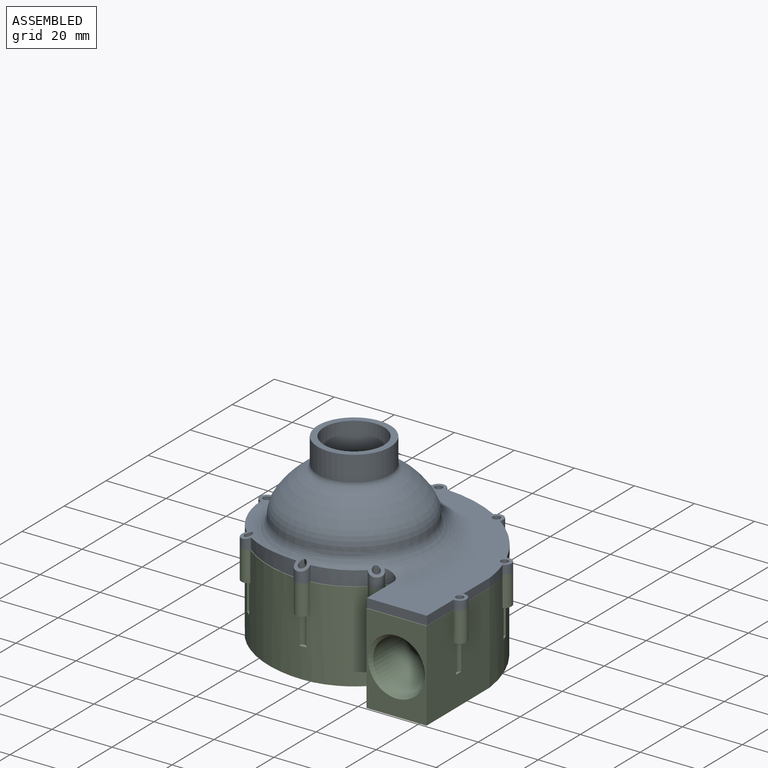
[diagram: assembled view]
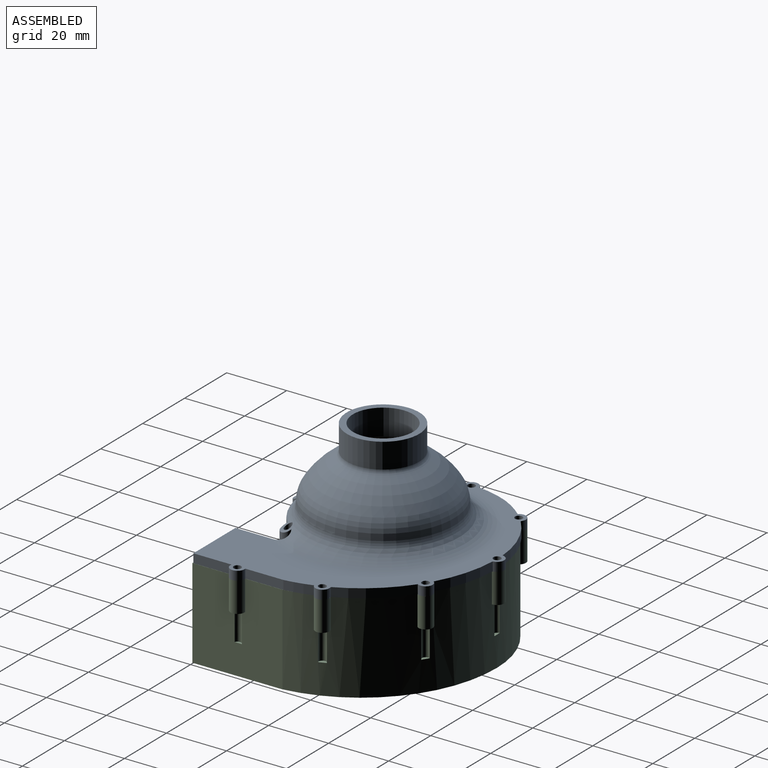
[diagram: assembled view, second angle]
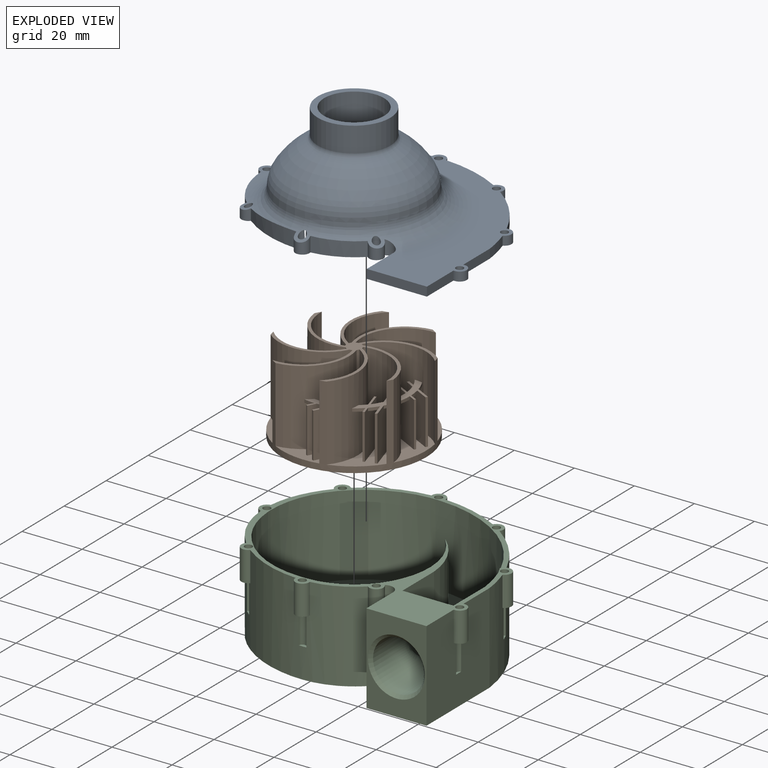
[diagram: exploded view]
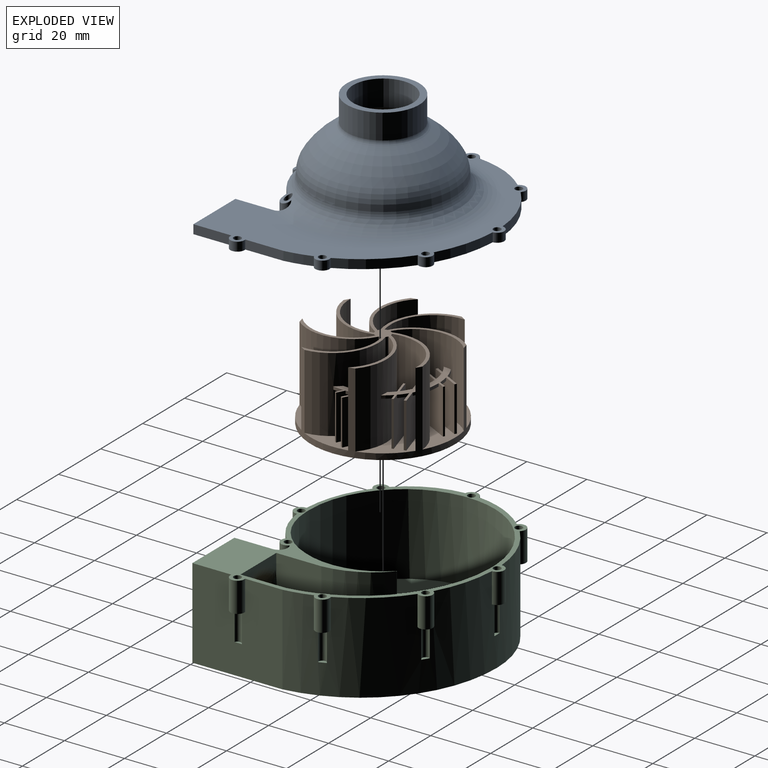
[diagram: exploded view, second angle]
ASSEMBLY  parts=3 mates=2
PART A: 57 faces, bbox 91.2x84.9x33 mm
  f0: cylinder r=35.31mm len=7.96mm, axis (0,0,-1), area 28.7mm2, adj f2,f8,f24,f55
  f1: cylinder r=37mm len=3.39mm, axis (0,0,-1), area 10.4mm2, adj f3,f10,f24,f52
  f2: plane 84.43x72.1mm, normal (0,0,1), area 1372.6mm2, adj f0,f3,f4,f5,f6,f7,f8,f9
  f3: torus R=32.11mm, axis (0,0,1), area 955.5mm2, adj f1,f2,f4,f10,f11,f12,f13,f14
  f4: torus R=32.11mm, axis (0,0,1), area 0.1mm2, adj f2,f3,f15
  f5: cylinder r=45.31mm len=19.86mm, axis (0,0,-1), area 62.6mm2, adj f2,f6,f23,f24
  f6: cylinder r=2.34mm len=4.68mm, axis (0,0,-1), area 21mm2, adj f2,f5,f7,f24
  f7: cylinder r=35.31mm len=20.98mm, axis (0,0,-1), area 69.3mm2, adj f2,f6,f8,f24
  f8: cylinder r=2.34mm len=3.92mm, axis (0,0,-1), area 21.4mm2, adj f0,f2,f7,f24
  f9: cylinder r=2.34mm len=4.35mm, axis (0,0,-1), area 16.8mm2, adj f2,f24,f53,f56
  f10: cylinder r=2.34mm len=4.2mm, axis (0,0,-1), area 27.3mm2, adj f1,f3,f11,f24
  f11: cylinder r=37mm len=20.39mm, axis (0,0,-1), area 97.6mm2, adj f3,f10,f12,f24
  f12: cylinder r=2.34mm len=5.1mm, axis (0,0,-1), area 41.9mm2, adj f3,f11,f13,f24
  f13: cylinder r=25mm len=14.5mm, axis (0,0,-1), area 79.3mm2, adj f3,f12,f14,f24
  f14: cylinder r=2.34mm len=4.8mm, axis (0,0,-1), area 38.4mm2, adj f3,f13,f24,f34
  f15: plane 12.85x3.01mm, normal (-1,0,0), area 38.5mm2, adj f2,f4,f16,f24,f34
  f16: plane 20x3mm, normal (0,-1,0), area 60mm2, adj f2,f15,f17,f24
  f17: plane 12.69x3mm, normal (1,0,0), area 38.1mm2, adj f2,f16,f18,f24
  f18: cylinder r=2.34mm len=4.69mm, axis (0,0,-1), area 24.8mm2, adj f2,f17,f19,f24
  f19: plane 12.7x3mm, normal (1,0,0), area 38.1mm2, adj f2,f18,f20,f24
  f20: cylinder r=45.31mm len=8.83mm, axis (0,0,-1), area 27.2mm2, adj f2,f19,f21,f24
  f21: cylinder r=2.34mm len=4.52mm, axis (0,0,-1), area 21.8mm2, adj f2,f20,f22,f24
  f22: cylinder r=45.31mm len=18.43mm, axis (0,0,-1), area 72.4mm2, adj f2,f21,f23,f24
  f23: cylinder r=2.34mm len=4.28mm, axis (0,0,-1), area 21.6mm2, adj f2,f5,f22,f24
  f24: plane 84.43x72.1mm, normal (0,0,-1), area 2326.2mm2, adj f0,f1,f5,f6,f7,f8,f9,f10
  f25: cylinder r=1.25mm len=5.48mm, axis (0,0,1), area 38.5mm2, adj f3,f24,f48
  f26: cylinder r=1.25mm len=5.8mm, axis (0,0,1), area 38mm2, adj f3,f24,f39,f51
  f27: cylinder r=1.25mm len=3.95mm, axis (0,0,1), area 28.3mm2, adj f3,f24
  f28: cylinder r=1.25mm len=3mm, axis (0,0,1), area 23.6mm2, adj f2,f24
  f29: cylinder r=1.25mm len=3mm, axis (0,0,1), area 23.6mm2, adj f2,f24
  f30: cylinder r=1.25mm len=3mm, axis (0,0,1), area 23.6mm2, adj f2,f24
  f31: cylinder r=1.25mm len=3mm, axis (0,0,1), area 23.6mm2, adj f2,f24
  f32: cylinder r=1.25mm len=3mm, axis (0,0,1), area 23.6mm2, adj f2,f24
  f33: cylinder r=1.25mm len=3mm, axis (0,0,1), area 23.6mm2, adj f2,f24
  f34: cylinder r=3mm len=4.85mm, axis (0,0,1), area 26.1mm2, adj f3,f14,f15,f24
  f35: cylinder r=25mm len=50mm, axis (0,0,1), area 450.7mm2, adj f24,f38
  f36: cylinder r=21.75mm len=43.5mm, axis (0,0,-1), area 865.3mm2, adj f37,f40
  f37: torus R=6.5mm, axis (0,0,-1), area 398.5mm2, adj f36,f38
  f38: cone r=20.22mm half-angle=89.2deg, axis (0,0,-1), area 678.8mm2, adj f35,f37
  f39: cone r=23.81mm half-angle=16.7deg, axis (0,0,-1), area 0mm2, adj f26
  f40: torus R=0.55mm, axis (0,0,-1), area 1598.6mm2, adj f36,f41
  f41: torus R=13.04mm, axis (0,0,-1), area 169mm2, adj f40,f42
  f42: cylinder r=10mm len=20mm, axis (0,0,-1), area 543mm2, adj f41,f43
  f43: plane 24.18x24.18mm, normal (0,0,1), area 145.1mm2, adj f42,f44
  f44: cylinder r=12.09mm len=24.18mm, axis (0,0,-1), area 637.6mm2, adj f43,f45
  f45: torus R=13.98mm, axis (0,0,-1), area 134mm2, adj f44,f46
  f46: revolved ~44.28x44.28mm, area 1410.8mm2, adj f45,f47
  f47: torus R=13.81mm, axis (0,0,1), area 856mm2, adj f46,f48,f49,f50,f51
  f48: bspline ~3.9x2.52mm, area 4.7mm2, adj f25,f47,f49,f50
  f49: torus R=28.81mm, axis (0,0,-1), area 76.3mm2, adj f3,f47,f48,f51
  f50: torus R=28.81mm, axis (0,0,-1), area 563.4mm2, adj f3,f47,f48,f51
  f51: bspline ~3.88x2.07mm, area 6.4mm2, adj f26,f47,f49,f50
  f52: cylinder r=29.08mm len=12.09mm, axis (0,0,-1), area 41.6mm2, adj f1,f2,f3,f24,f54
  f53: cylinder r=1.77mm len=3mm, axis (0,0,-1), area 2.1mm2, adj f2,f9,f24,f54
  f54: cylinder r=32.39mm len=4.77mm, axis (0,0,-1), area 14.5mm2, adj f2,f24,f52,f53
  f55: cylinder r=36.16mm len=10.54mm, axis (0,0,-1), area 32.8mm2, adj f0,f2,f24,f56
  f56: cylinder r=2.09mm len=3mm, axis (0,0,-1), area 1.2mm2, adj f2,f9,f24,f55
PART B: 189 faces, bbox 48x48x27 mm
  f0: cylinder r=14.13mm len=25mm, axis (0,0,-1), area 661mm2, adj f51,f57,f66,f67,f97,f145,f146,f147
  f1: cylinder r=15.34mm len=25mm, axis (0,0,-1), area 672.7mm2, adj f50,f63,f66,f67,f102,f139,f140,f141
  f2: cylinder r=14.13mm len=25mm, axis (0,0,-1), area 661mm2, adj f50,f63,f66,f68,f102,f136,f137,f138
  f3: cylinder r=15.34mm len=25mm, axis (0,0,-1), area 672.7mm2, adj f49,f62,f66,f68,f107,f130,f131,f132
  f4: cylinder r=14.13mm len=25mm, axis (0,0,-1), area 661mm2, adj f49,f62,f66,f69,f107,f127,f128,f129
  f5: cylinder r=15.34mm len=25mm, axis (0,0,-1), area 672.7mm2, adj f48,f61,f66,f69,f112,f121,f122,f123
  f6: cylinder r=14.13mm len=25mm, axis (0,0,-1), area 661mm2, adj f48,f61,f66,f70,f112,f118,f119,f120
  f7: cylinder r=15.34mm len=25mm, axis (0,0,-1), area 672.7mm2, adj f55,f60,f66,f70,f77,f184,f185,f186
  f8: cylinder r=14.13mm len=25mm, axis (0,0,-1), area 661mm2, adj f55,f60,f66,f71,f77,f181,f182,f183
  f9: cylinder r=15.34mm len=25mm, axis (0,0,-1), area 672.7mm2, adj f54,f59,f66,f71,f82,f175,f176,f177
  f10: cylinder r=14.13mm len=25mm, axis (0,0,-1), area 661mm2, adj f54,f59,f66,f72,f82,f172,f173,f174
  f11: cylinder r=15.34mm len=25mm, axis (0,0,-1), area 672.7mm2, adj f53,f58,f66,f72,f87,f166,f167,f168
  f12: cylinder r=14.13mm len=25mm, axis (0,0,-1), area 661mm2, adj f53,f58,f66,f73,f87,f163,f164,f165
  f13: cylinder r=15.34mm len=25mm, axis (0,0,-1), area 672.7mm2, adj f52,f56,f66,f73,f92,f157,f158,f159
  f14: cylinder r=14.13mm len=25mm, axis (0,0,-1), area 661mm2, adj f52,f56,f66,f74,f92,f154,f155,f156
  f15: cylinder r=15.34mm len=25mm, axis (0,0,-1), area 672.7mm2, adj f51,f57,f66,f74,f97,f148,f149,f150
  f16: plane 15x9.97mm, normal (-0.3,0.96,0), area 154.1mm2, adj f55,f75,f76,f77,f184,f185,f186
  f17: plane 15x9.99mm, normal (0.3,-0.96,0), area 154.4mm2, adj f55,f75,f76,f77,f178,f179,f180
  f18: plane 15x10.76mm, normal (0.3,-0.96,0), area 165.8mm2, adj f55,f77,f78,f79,f181,f182,f183
  f19: plane 15x10.76mm, normal (-0.3,0.96,0), area 166mm2, adj f55,f77,f78,f79,f178,f179,f180
  f20: plane 15x9.23mm, normal (-0.88,0.47,0), area 154.1mm2, adj f54,f80,f81,f82,f175,f176,f177
  f21: plane 15x9.25mm, normal (0.88,-0.47,0), area 154.4mm2, adj f54,f80,f81,f82,f169,f170,f171
  f22: plane 15x9.96mm, normal (0.88,-0.47,0), area 165.8mm2, adj f54,f82,f83,f84,f172,f173,f174
  f23: plane 15x9.96mm, normal (-0.88,0.47,0), area 166mm2, adj f54,f82,f83,f84,f169,f170,f171
  f24: plane 15x9.97mm, normal (-0.96,-0.3,0), area 154.1mm2, adj f53,f85,f86,f87,f166,f167,f168
  f25: plane 15x9.99mm, normal (0.96,0.3,0), area 154.4mm2, adj f53,f85,f86,f87,f160,f161,f162
  f26: plane 15x10.76mm, normal (0.96,0.3,0), area 165.8mm2, adj f53,f87,f88,f89,f163,f164,f165
  f27: plane 15x10.76mm, normal (-0.96,-0.3,0), area 166mm2, adj f53,f87,f88,f89,f160,f161,f162
  f28: plane 15x9.23mm, normal (-0.47,-0.88,0), area 154.1mm2, adj f52,f90,f91,f92,f157,f158,f159
  f29: plane 15x9.25mm, normal (0.47,0.88,0), area 154.4mm2, adj f52,f90,f91,f92,f151,f152,f153
  f30: plane 15x9.96mm, normal (0.47,0.88,0), area 165.8mm2, adj f52,f92,f93,f94,f154,f155,f156
  f31: plane 15x9.96mm, normal (-0.47,-0.88,0), area 166mm2, adj f52,f92,f93,f94,f151,f152,f153
  f32: plane 15x9.97mm, normal (0.3,-0.96,0), area 154.1mm2, adj f51,f95,f96,f97,f148,f149,f150
  f33: plane 15x9.99mm, normal (-0.3,0.96,0), area 154.4mm2, adj f51,f95,f96,f97,f142,f143,f144
  f34: plane 15x10.76mm, normal (-0.3,0.96,0), area 165.8mm2, adj f51,f97,f98,f99,f145,f146,f147
  f35: plane 15x10.76mm, normal (0.3,-0.96,0), area 166mm2, adj f51,f97,f98,f99,f142,f143,f144
  f36: plane 15x9.23mm, normal (0.88,-0.47,0), area 154.1mm2, adj f50,f100,f101,f102,f139,f140,f141
  f37: plane 15x9.25mm, normal (-0.88,0.47,0), area 154.4mm2, adj f50,f100,f101,f102,f133,f134,f135
  f38: plane 15x9.96mm, normal (-0.88,0.47,0), area 165.8mm2, adj f50,f102,f103,f104,f136,f137,f138
  f39: plane 15x9.96mm, normal (0.88,-0.47,0), area 166mm2, adj f50,f102,f103,f104,f133,f134,f135
  f40: plane 15x9.97mm, normal (0.96,0.3,0), area 154.1mm2, adj f49,f105,f106,f107,f130,f131,f132
  f41: plane 15x9.99mm, normal (-0.96,-0.3,0), area 154.4mm2, adj f49,f105,f106,f107,f124,f125,f126
  f42: plane 15x10.76mm, normal (-0.96,-0.3,0), area 165.8mm2, adj f49,f107,f108,f109,f127,f128,f129
  f43: plane 15x10.76mm, normal (0.96,0.3,0), area 166mm2, adj f49,f107,f108,f109,f124,f125,f126
  f44: plane 15x9.23mm, normal (0.47,0.88,0), area 154.1mm2, adj f48,f110,f111,f112,f121,f122,f123
  f45: plane 15x9.25mm, normal (-0.47,-0.88,0), area 154.4mm2, adj f48,f110,f111,f112,f115,f116,f117
  f46: plane 15x9.96mm, normal (-0.47,-0.88,0), area 165.8mm2, adj f48,f112,f113,f114,f118,f119,f120
  f47: plane 15x9.96mm, normal (0.47,0.88,0), area 166mm2, adj f48,f112,f113,f114,f115,f116,f117
  f48: plane 23.17x20.82mm, normal (0,0,1), area 181.4mm2, adj f5,f6,f44,f45,f46,f47,f61,f64
  f49: plane 24.56x17.8mm, normal (0,0,1), area 181.4mm2, adj f3,f4,f40,f41,f42,f43,f62,f64
  f50: plane 23.17x20.82mm, normal (0,0,1), area 181.4mm2, adj f1,f2,f36,f37,f38,f39,f63,f64
  f51: plane 24.56x17.8mm, normal (0,0,1), area 181.4mm2, adj f0,f15,f32,f33,f34,f35,f57,f64
  f52: plane 23.17x20.82mm, normal (0,0,1), area 181.4mm2, adj f13,f14,f28,f29,f30,f31,f56,f64
  f53: plane 24.56x17.8mm, normal (0,0,1), area 181.4mm2, adj f11,f12,f24,f25,f26,f27,f58,f64
  f54: plane 23.17x20.82mm, normal (0,0,1), area 181.4mm2, adj f9,f10,f20,f21,f22,f23,f59,f64
  f55: plane 24.56x17.8mm, normal (0,0,1), area 181.4mm2, adj f7,f8,f16,f17,f18,f19,f60,f64
  f56: cylinder r=2.5mm len=25mm, axis (0,0,-1), area 21.5mm2, adj f13,f14,f52,f66
  f57: cylinder r=2.5mm len=25mm, axis (0,0,-1), area 21.5mm2, adj f0,f15,f51,f66
  f58: cylinder r=2.5mm len=25mm, axis (0,0,-1), area 21.5mm2, adj f11,f12,f53,f66
  f59: cylinder r=2.5mm len=25mm, axis (0,0,-1), area 21.5mm2, adj f9,f10,f54,f66
  f60: cylinder r=2.5mm len=25mm, axis (0,0,-1), area 21.5mm2, adj f7,f8,f55,f66
  f61: cylinder r=2.5mm len=25mm, axis (0,0,-1), area 21.5mm2, adj f5,f6,f48,f66
  f62: cylinder r=2.5mm len=25mm, axis (0,0,-1), area 21.5mm2, adj f3,f4,f49,f66
  f63: cylinder r=2.5mm len=25mm, axis (0,0,-1), area 21.5mm2, adj f1,f2,f50,f66
  f64: cylinder r=24mm len=48mm, axis (0,0,-1), area 301.6mm2, adj f48,f49,f50,f51,f52,f53,f54,f55
  f65: plane 48x48mm, normal (0,0,-1), area 1802.5mm2, adj f64,f187
  f66: plane 47.02x47.02mm, normal (0,0,1), area 236.1mm2, adj f0,f1,f2,f3,f4,f5,f6,f7
  f67: cylinder r=30.35mm len=25mm, axis (0,0,-1), area 53mm2, adj f0,f1,f64,f66
  f68: cylinder r=30.35mm len=25mm, axis (0,0,-1), area 53mm2, adj f2,f3,f64,f66
  f69: cylinder r=30.35mm len=25mm, axis (0,0,-1), area 53mm2, adj f4,f5,f64,f66
  f70: cylinder r=30.35mm len=25mm, axis (0,0,-1), area 53mm2, adj f6,f7,f64,f66
  f71: cylinder r=30.35mm len=25mm, axis (0,0,-1), area 53mm2, adj f8,f9,f64,f66
  f72: cylinder r=30.35mm len=25mm, axis (0,0,-1), area 53mm2, adj f10,f11,f64,f66
  f73: cylinder r=30.35mm len=25mm, axis (0,0,-1), area 53mm2, adj f12,f13,f64,f66
  f74: cylinder r=30.35mm len=25mm, axis (0,0,-1), area 53mm2, adj f14,f15,f64,f66
  f75: plane 15x0.61mm, normal (0.95,0.33,0), area 9.7mm2, adj f16,f17,f55,f77
  f76: plane 15x0.62mm, normal (-0.96,-0.3,0), area 9.7mm2, adj f16,f17,f55,f77
  f77: plane 12.79x7.69mm, normal (0,0,1), area 37.7mm2, adj f7,f8,f16,f17,f18,f19,f75,f76
  f78: plane 15x0.73mm, normal (-0.96,-0.3,0), area 11.4mm2, adj f18,f19,f55,f77
  f79: plane 15x0.73mm, normal (0.96,0.3,0), area 11.4mm2, adj f18,f19,f55,f77
  f80: plane 15x0.58mm, normal (0.44,0.9,0), area 9.7mm2, adj f20,f21,f54,f82
  f81: plane 15x0.57mm, normal (-0.47,-0.88,0), area 9.7mm2, adj f20,f21,f54,f82
  f82: plane 13.2x11.22mm, normal (0,0,1), area 37.7mm2, adj f9,f10,f20,f21,f22,f23,f80,f81
  f83: plane 15x0.67mm, normal (-0.47,-0.88,0), area 11.4mm2, adj f22,f23,f54,f82
  f84: plane 15x0.67mm, normal (0.47,0.88,0), area 11.4mm2, adj f22,f23,f54,f82
  f85: plane 15x0.61mm, normal (-0.33,0.95,0), area 9.7mm2, adj f24,f25,f53,f87
  f86: plane 15x0.62mm, normal (0.3,-0.96,0), area 9.7mm2, adj f24,f25,f53,f87
  f87: plane 12.79x7.69mm, normal (0,0,1), area 37.7mm2, adj f11,f12,f24,f25,f26,f27,f85,f86
  f88: plane 15x0.73mm, normal (0.3,-0.96,0), area 11.4mm2, adj f26,f27,f53,f87
  f89: plane 15x0.73mm, normal (-0.3,0.96,0), area 11.4mm2, adj f26,f27,f53,f87
  f90: plane 15x0.58mm, normal (-0.9,0.44,0), area 9.7mm2, adj f28,f29,f52,f92
  f91: plane 15x0.57mm, normal (0.88,-0.47,0), area 9.7mm2, adj f28,f29,f52,f92
  f92: plane 13.2x11.22mm, normal (0,0,1), area 37.7mm2, adj f13,f14,f28,f29,f30,f31,f90,f91
  f93: plane 15x0.67mm, normal (0.88,-0.47,0), area 11.4mm2, adj f30,f31,f52,f92
  f94: plane 15x0.67mm, normal (-0.88,0.47,0), area 11.4mm2, adj f30,f31,f52,f92
  f95: plane 15x0.61mm, normal (-0.95,-0.33,0), area 9.7mm2, adj f32,f33,f51,f97
  f96: plane 15x0.62mm, normal (0.96,0.3,0), area 9.7mm2, adj f32,f33,f51,f97
  f97: plane 12.79x7.69mm, normal (0,0,1), area 37.7mm2, adj f0,f15,f32,f33,f34,f35,f95,f96
  f98: plane 15x0.73mm, normal (0.96,0.3,0), area 11.4mm2, adj f34,f35,f51,f97
  f99: plane 15x0.73mm, normal (-0.96,-0.3,0), area 11.4mm2, adj f34,f35,f51,f97
  f100: plane 15x0.58mm, normal (-0.44,-0.9,0), area 9.7mm2, adj f36,f37,f50,f102
  f101: plane 15x0.57mm, normal (0.47,0.88,0), area 9.7mm2, adj f36,f37,f50,f102
  f102: plane 13.2x11.22mm, normal (0,0,1), area 37.7mm2, adj f1,f2,f36,f37,f38,f39,f100,f101
  f103: plane 15x0.67mm, normal (0.47,0.88,0), area 11.4mm2, adj f38,f39,f50,f102
  f104: plane 15x0.67mm, normal (-0.47,-0.88,0), area 11.4mm2, adj f38,f39,f50,f102
  f105: plane 15x0.61mm, normal (0.33,-0.95,0), area 9.7mm2, adj f40,f41,f49,f107
  f106: plane 15x0.62mm, normal (-0.3,0.96,0), area 9.7mm2, adj f40,f41,f49,f107
  f107: plane 12.79x7.69mm, normal (0,0,1), area 37.7mm2, adj f3,f4,f40,f41,f42,f43,f105,f106
  f108: plane 15x0.73mm, normal (-0.3,0.96,0), area 11.4mm2, adj f42,f43,f49,f107
  f109: plane 15x0.73mm, normal (0.3,-0.96,0), area 11.4mm2, adj f42,f43,f49,f107
  f110: plane 15x0.58mm, normal (0.9,-0.44,0), area 9.7mm2, adj f44,f45,f48,f112
  f111: plane 15x0.57mm, normal (-0.88,0.47,0), area 9.7mm2, adj f44,f45,f48,f112
  f112: plane 13.2x11.22mm, normal (0,0,1), area 37.7mm2, adj f5,f6,f44,f45,f46,f47,f110,f111
  f113: plane 15x0.67mm, normal (-0.88,0.47,0), area 11.4mm2, adj f46,f47,f48,f112
  f114: plane 15x0.67mm, normal (0.88,-0.47,0), area 11.4mm2, adj f46,f47,f48,f112
  f115: plane 4.82x2.99mm, normal (0,0,-1), area 7.6mm2, adj f45,f47,f116,f117
  f116: cylinder r=18.65mm len=3.47mm, axis (0,0,1), area 3.5mm2, adj f45,f47,f112,f115
  f117: cylinder r=16.55mm len=3.67mm, axis (0,0,1), area 3.8mm2, adj f45,f47,f112,f115
  f118: plane 4.39x4.35mm, normal (0,0,-1), area 8.3mm2, adj f6,f46,f119,f120
  f119: cylinder r=18.65mm len=4.03mm, axis (0,0,1), area 4.4mm2, adj f6,f46,f112,f118
  f120: cylinder r=16.55mm len=2.96mm, axis (0,0,1), area 3.4mm2, adj f6,f46,f112,f118
  f121: plane 4.73x2.18mm, normal (0,0,-1), area 6.5mm2, adj f5,f44,f122,f123
  f122: cylinder r=18.65mm len=3.61mm, axis (0,0,1), area 3.6mm2, adj f5,f44,f112,f121
  f123: cylinder r=16.55mm len=2.67mm, axis (0,0,1), area 2.7mm2, adj f5,f44,f112,f121
  f124: plane 5.52x2.87mm, normal (0,0,-1), area 7.6mm2, adj f41,f43,f125,f126
  f125: cylinder r=18.65mm len=2.76mm, axis (0,0,1), area 3.5mm2, adj f41,f43,f107,f124
  f126: cylinder r=16.55mm len=3.17mm, axis (0,0,1), area 3.8mm2, adj f41,f43,f107,f124
  f127: plane 6.18x2.58mm, normal (0,0,-1), area 8.3mm2, adj f4,f42,f128,f129
  f128: cylinder r=18.65mm len=4.03mm, axis (0,0,1), area 4.4mm2, adj f4,f42,f107,f127
  f129: cylinder r=16.55mm len=3.25mm, axis (0,0,1), area 3.4mm2, adj f4,f42,f107,f127
  f130: plane 4.57x2.82mm, normal (0,0,-1), area 6.5mm2, adj f3,f40,f131,f132
  f131: cylinder r=18.65mm len=2.82mm, axis (0,0,1), area 3.6mm2, adj f3,f40,f107,f130
  f132: cylinder r=16.55mm len=1.93mm, axis (0,0,1), area 2.7mm2, adj f3,f40,f107,f130
  f133: plane 4.82x2.99mm, normal (0,0,-1), area 7.6mm2, adj f37,f39,f134,f135
  f134: cylinder r=18.65mm len=3.47mm, axis (0,0,1), area 3.5mm2, adj f37,f39,f102,f133
  f135: cylinder r=16.55mm len=3.67mm, axis (0,0,1), area 3.8mm2, adj f37,f39,f102,f133
  f136: plane 4.39x4.35mm, normal (0,0,-1), area 8.3mm2, adj f2,f38,f137,f138
  f137: cylinder r=18.65mm len=4.03mm, axis (0,0,1), area 4.4mm2, adj f2,f38,f102,f136
  f138: cylinder r=16.55mm len=2.96mm, axis (0,0,1), area 3.4mm2, adj f2,f38,f102,f136
  f139: plane 4.73x2.18mm, normal (0,0,-1), area 6.5mm2, adj f1,f36,f140,f141
  f140: cylinder r=18.65mm len=3.61mm, axis (0,0,1), area 3.6mm2, adj f1,f36,f102,f139
  f141: cylinder r=16.55mm len=2.67mm, axis (0,0,1), area 2.7mm2, adj f1,f36,f102,f139
  f142: plane 5.52x2.87mm, normal (0,0,-1), area 7.6mm2, adj f33,f35,f143,f144
  f143: cylinder r=18.65mm len=2.76mm, axis (0,0,1), area 3.5mm2, adj f33,f35,f97,f142
  f144: cylinder r=16.55mm len=3.17mm, axis (0,0,1), area 3.8mm2, adj f33,f35,f97,f142
  f145: plane 6.18x2.58mm, normal (0,0,-1), area 8.3mm2, adj f0,f34,f146,f147
  f146: cylinder r=18.65mm len=4.03mm, axis (0,0,1), area 4.4mm2, adj f0,f34,f97,f145
  f147: cylinder r=16.55mm len=3.25mm, axis (0,0,1), area 3.4mm2, adj f0,f34,f97,f145
  f148: plane 4.57x2.82mm, normal (0,0,-1), area 6.5mm2, adj f15,f32,f149,f150
  f149: cylinder r=18.65mm len=2.82mm, axis (0,0,1), area 3.6mm2, adj f15,f32,f97,f148
  f150: cylinder r=16.55mm len=1.93mm, axis (0,0,1), area 2.7mm2, adj f15,f32,f97,f148
  f151: plane 4.82x2.99mm, normal (0,0,-1), area 7.6mm2, adj f29,f31,f152,f153
  f152: cylinder r=18.65mm len=3.47mm, axis (0,0,1), area 3.5mm2, adj f29,f31,f92,f151
  f153: cylinder r=16.55mm len=3.67mm, axis (0,0,1), area 3.8mm2, adj f29,f31,f92,f151
  f154: plane 4.39x4.35mm, normal (0,0,-1), area 8.3mm2, adj f14,f30,f155,f156
  f155: cylinder r=18.65mm len=4.03mm, axis (0,0,1), area 4.4mm2, adj f14,f30,f92,f154
  f156: cylinder r=16.55mm len=2.96mm, axis (0,0,1), area 3.4mm2, adj f14,f30,f92,f154
  f157: plane 4.73x2.18mm, normal (0,0,-1), area 6.5mm2, adj f13,f28,f158,f159
  f158: cylinder r=18.65mm len=3.61mm, axis (0,0,1), area 3.6mm2, adj f13,f28,f92,f157
  f159: cylinder r=16.55mm len=2.67mm, axis (0,0,1), area 2.7mm2, adj f13,f28,f92,f157
  f160: plane 5.52x2.87mm, normal (0,0,-1), area 7.6mm2, adj f25,f27,f161,f162
  f161: cylinder r=18.65mm len=2.76mm, axis (0,0,1), area 3.5mm2, adj f25,f27,f87,f160
  f162: cylinder r=16.55mm len=3.17mm, axis (0,0,1), area 3.8mm2, adj f25,f27,f87,f160
  f163: plane 6.18x2.58mm, normal (0,0,-1), area 8.3mm2, adj f12,f26,f164,f165
  f164: cylinder r=18.65mm len=4.03mm, axis (0,0,1), area 4.4mm2, adj f12,f26,f87,f163
  f165: cylinder r=16.55mm len=3.25mm, axis (0,0,1), area 3.4mm2, adj f12,f26,f87,f163
  f166: plane 4.57x2.82mm, normal (0,0,-1), area 6.5mm2, adj f11,f24,f167,f168
  f167: cylinder r=18.65mm len=2.82mm, axis (0,0,1), area 3.6mm2, adj f11,f24,f87,f166
  f168: cylinder r=16.55mm len=1.93mm, axis (0,0,1), area 2.7mm2, adj f11,f24,f87,f166
  f169: plane 4.82x2.99mm, normal (0,0,-1), area 7.6mm2, adj f21,f23,f170,f171
  f170: cylinder r=18.65mm len=3.47mm, axis (0,0,1), area 3.5mm2, adj f21,f23,f82,f169
  f171: cylinder r=16.55mm len=3.67mm, axis (0,0,1), area 3.8mm2, adj f21,f23,f82,f169
  f172: plane 4.39x4.35mm, normal (0,0,-1), area 8.3mm2, adj f10,f22,f173,f174
  f173: cylinder r=18.65mm len=4.03mm, axis (0,0,1), area 4.4mm2, adj f10,f22,f82,f172
  f174: cylinder r=16.55mm len=2.96mm, axis (0,0,1), area 3.4mm2, adj f10,f22,f82,f172
  f175: plane 4.73x2.18mm, normal (0,0,-1), area 6.5mm2, adj f9,f20,f176,f177
  f176: cylinder r=18.65mm len=3.61mm, axis (0,0,1), area 3.6mm2, adj f9,f20,f82,f175
  f177: cylinder r=16.55mm len=2.67mm, axis (0,0,1), area 2.7mm2, adj f9,f20,f82,f175
  f178: plane 5.52x2.87mm, normal (0,0,-1), area 7.6mm2, adj f17,f19,f179,f180
  f179: cylinder r=18.65mm len=2.76mm, axis (0,0,1), area 3.5mm2, adj f17,f19,f77,f178
  f180: cylinder r=16.55mm len=3.17mm, axis (0,0,1), area 3.8mm2, adj f17,f19,f77,f178
  f181: plane 6.18x2.58mm, normal (0,0,-1), area 8.3mm2, adj f8,f18,f182,f183
  f182: cylinder r=18.65mm len=4.03mm, axis (0,0,1), area 4.4mm2, adj f8,f18,f77,f181
  f183: cylinder r=16.55mm len=3.25mm, axis (0,0,1), area 3.4mm2, adj f8,f18,f77,f181
  f184: plane 4.57x2.82mm, normal (0,0,-1), area 6.5mm2, adj f7,f16,f185,f186
  f185: cylinder r=16.55mm len=1.93mm, axis (0,0,1), area 2.7mm2, adj f7,f16,f77,f184
  f186: cylinder r=18.65mm len=2.82mm, axis (0,0,1), area 3.6mm2, adj f7,f16,f77,f184
  f187: cylinder r=1.5mm len=25mm, axis (0,0,-1), area 235.6mm2, adj f65,f188
  f188: plane 3x3mm, normal (0,0,-1), area 7.1mm2, adj f187
PART C: 81 faces, bbox 95.6x91x42 mm
  f0: plane 22.33x22.33mm, normal (0,0,-1), area 11.5mm2, adj f76,f78
  f1: plane 84.43x72.39mm, normal (0,0,1), area 743.6mm2, adj f2,f3,f4,f5,f6,f7,f8,f9
  f2: cylinder r=27.26mm len=27mm, axis (0,0,1), area 576.2mm2, adj f1,f17,f18,f23,f75
  f3: cylinder r=31.5mm len=27mm, axis (0,0,1), area 735.8mm2, adj f1,f5,f18,f74
  f4: cylinder r=23.3mm len=27mm, axis (0,0,1), area 748.9mm2, adj f1,f18,f73,f74
  f5: cylinder r=30mm len=39.85mm, axis (0,0,-1), area 1164.4mm2, adj f1,f3,f6,f18,f35
  f6: cylinder r=33.82mm len=27mm, axis (0,0,1), area 740.3mm2, adj f1,f5,f18,f19,f32
  f7: plane 17x4.51mm, normal (0,1,0), area 41.7mm2, adj f1,f16,f17,f27
  f8: plane 30x20mm, normal (0,-1,0), area 316.5mm2, adj f1,f11,f12,f15,f77
  f9: cylinder r=37mm len=30mm, axis (0,0,-1), area 748.6mm2, adj f1,f10,f15,f20,f40,f41,f42,f43
  f10: cylinder r=25mm len=30mm, axis (0,0,-1), area 576.2mm2, adj f1,f9,f15,f21,f42,f43,f44,f45
  f11: plane 30x12.68mm, normal (-1,0,0), area 380.4mm2, adj f1,f8,f15,f21
  f12: plane 30x30mm, normal (1,0,0), area 829.9mm2, adj f1,f8,f13,f15,f53,f54,f55,f56
  f13: cylinder r=45.31mm len=45mm, axis (0,0,-1), area 1795.8mm2, adj f1,f12,f14,f15,f33,f34,f46,f47
  f14: cylinder r=35.31mm len=32.03mm, axis (0,0,-1), area 1096.4mm2, adj f1,f13,f15,f20,f33,f34,f38,f39
  f15: plane 79.82x70mm, normal (0,0,-1), area 2038mm2, adj f8,f9,f10,f11,f12,f13,f14,f20
  f16: plane 29.06x17.7mm, normal (-1,0,0), area 320.2mm2, adj f1,f7,f19,f23,f26,f28,f31
  f17: plane 29.06x17.7mm, normal (1,0,0), area 320.2mm2, adj f1,f2,f7,f23,f24,f25,f29
  f18: plane 75.41x62.04mm, normal (0,0,1), area 2829mm2, adj f2,f3,f4,f5,f6,f19,f23,f73
  f19: cylinder r=43.82mm len=43.5mm, axis (0,0,1), area 1676.4mm2, adj f1,f6,f16,f18,f23,f32,f48,f49
  f20: cylinder r=30mm len=34.38mm, axis (0,0,-1), area 1042.2mm2, adj f1,f9,f14,f15,f36,f37,f40,f41
  f21: cylinder r=3mm len=30mm, axis (0,0,-1), area 212.3mm2, adj f1,f10,f11,f15,f44,f45
  f22: cylinder r=8.5mm len=21.24mm, axis (0,-1,0), area 744.7mm2, adj f24,f25,f26,f27,f28,f29,f30,f31
  f23: cylinder r=20mm len=17.8mm, axis (-1,0,0), area 204.9mm2, adj f2,f16,f17,f18,f19,f30
  f24: bspline ~8x6.07mm, area 13.3mm2, adj f17,f22,f25
  f25: bspline ~6.33x5.21mm, area 11.7mm2, adj f17,f22,f24,f27
  f26: bspline ~8.56x6.32mm, area 13.3mm2, adj f16,f22,f28
  f27: torus R=13.5mm, axis (0,-1,0), area 110.4mm2, adj f7,f22,f25,f28
  f28: bspline ~6.33x5.21mm, area 11.7mm2, adj f16,f22,f26,f27
  f29: bspline ~7.85x6.71mm, area 12.8mm2, adj f17,f22,f30
  f30: bspline ~19.77x7.94mm, area 58.5mm2, adj f22,f23,f29,f31
  f31: bspline ~6.79x5.45mm, area 12.8mm2, adj f16,f22,f30
  f32: cylinder r=38.21mm len=10mm, axis (0,0,1), area 17.2mm2, adj f1,f6,f19
  f33: cylinder r=2.34mm len=10mm, axis (0,0,1), area 75.9mm2, adj f1,f13,f14,f34
  f34: plane 4.69x2.46mm, normal (0,0,-1), area 6.4mm2, adj f13,f14,f33,f72
  f35: cylinder r=38.21mm len=10mm, axis (0,0,1), area 12.5mm2, adj f1,f5
  f36: cylinder r=2.34mm len=10mm, axis (0,0,1), area 66.4mm2, adj f1,f20,f37
  f37: plane 4.63x2.02mm, normal (0,0,-1), area 5.3mm2, adj f20,f36,f69
  f38: cylinder r=2.34mm len=10mm, axis (0,0,1), area 76.4mm2, adj f1,f14,f39
  f39: plane 4.1x4.09mm, normal (0,0,-1), area 6.4mm2, adj f14,f38,f68
  f40: plane 4.08x3.86mm, normal (0,0,-1), area 6mm2, adj f9,f20,f41,f66
  f41: cylinder r=2.34mm len=10mm, axis (0,0,1), area 72.9mm2, adj f1,f9,f20,f40
  f42: cylinder r=2.34mm len=10mm, axis (0,0,1), area 77.3mm2, adj f1,f9,f10,f43
  f43: plane 4.69x2.56mm, normal (0,0,-1), area 6.5mm2, adj f9,f10,f42,f64
  f44: plane 4.03x3.95mm, normal (0,0,-1), area 6.2mm2, adj f10,f21,f45,f62
  f45: cylinder r=2.34mm len=10mm, axis (0,0,1), area 73.3mm2, adj f1,f10,f21,f44
  f46: cylinder r=2.34mm len=10mm, axis (0,0,1), area 76.2mm2, adj f1,f13,f47
  f47: plane 4.39x3.7mm, normal (0,0,-1), area 6.4mm2, adj f13,f46,f60
  f48: cylinder r=38.21mm len=10mm, axis (0,0,1), area 34.6mm2, adj f1,f19,f49,f50
  f49: plane 3.4x1.47mm, normal (0,0,-1), area 0.4mm2, adj f19,f48,f50
  f50: cylinder r=2.34mm len=10mm, axis (0,0,1), area 3mm2, adj f1,f19,f48,f49
  f51: cylinder r=2.34mm len=10mm, axis (0,0,1), area 73.6mm2, adj f1,f13,f52
  f52: plane 4.53x3.2mm, normal (0,0,-1), area 6.1mm2, adj f13,f51,f58
  f53: cylinder r=2.34mm len=10mm, axis (0,0,1), area 81.2mm2, adj f1,f12,f54
  f54: plane 4.69x2.72mm, normal (0,0,-1), area 7mm2, adj f12,f53,f55
  f55: cylinder r=1.25mm len=20mm, axis (0,0,1), area 110.2mm2, adj f1,f12,f54,f56
  f56: plane 2.38x0.87mm, normal (0,0,1), area 1.5mm2, adj f12,f55
  f57: plane 2.43x1.75mm, normal (0,0,1), area 2.6mm2, adj f13,f58
  f58: cylinder r=1.25mm len=20mm, axis (0,0,1), area 118.7mm2, adj f1,f13,f52,f57
  f59: plane 2.26x1.85mm, normal (0,0,1), area 2.3mm2, adj f13,f60
  f60: cylinder r=1.25mm len=20mm, axis (0,0,1), area 116.2mm2, adj f1,f13,f47,f59
  f61: plane 2.19x2.07mm, normal (0,0,1), area 2.5mm2, adj f10,f62
  f62: cylinder r=1.25mm len=20mm, axis (0,0,1), area 117.7mm2, adj f1,f10,f44,f61
  f63: plane 2.49x1.17mm, normal (0,0,1), area 2.2mm2, adj f9,f10,f64
  f64: cylinder r=1.25mm len=20mm, axis (0,0,1), area 115.5mm2, adj f1,f9,f10,f43,f63
  f65: plane 2.25x2.14mm, normal (0,0,1), area 2.7mm2, adj f9,f66
  f66: cylinder r=1.25mm len=20mm, axis (0,0,1), area 119.7mm2, adj f1,f9,f40,f65
  f67: plane 2.08x2.07mm, normal (0,0,1), area 2.3mm2, adj f14,f68
  f68: cylinder r=1.25mm len=20mm, axis (0,0,1), area 116.2mm2, adj f1,f14,f39,f67
  f69: cylinder r=1.25mm len=20mm, axis (0,0,1), area 126.5mm2, adj f1,f20,f37,f70
  f70: plane 2.5x1.7mm, normal (0,0,1), area 3.5mm2, adj f20,f69
  f71: plane 2.5x1.21mm, normal (0,0,1), area 2.3mm2, adj f13,f14,f72
  f72: cylinder r=1.25mm len=20mm, axis (0,0,1), area 116.6mm2, adj f1,f13,f14,f34,f71
  f73: cylinder r=25mm len=27.19mm, axis (0,0,-1), area 789.5mm2, adj f1,f4,f18,f75
  f74: cylinder r=25mm len=27mm, axis (0,0,-1), area 57.8mm2, adj f1,f3,f4,f18
  f75: cylinder r=0.05mm len=27mm, axis (0,0,-1), area 4.1mm2, adj f1,f2,f18,f73
  f76: cylinder r=11mm len=22mm, axis (0,0,-1), area 207.3mm2, adj f0,f18
  f77: cone r=8.5mm half-angle=45deg, axis (0,-1,0), area 80mm2, adj f8,f22
  f78: cylinder r=11.16mm len=22.33mm, axis (0,0,1), area 350.8mm2, adj f0,f79
  f79: plane 26.76x26.76mm, normal (0,0,-1), area 170.6mm2, adj f78,f80
  f80: torus R=26.61mm, axis (0,0,1), area 1783.5mm2, adj f9,f10,f15,f79
PLACE A t=(12.27,33.84,29.1)mm
PLACE B t=(-15.06,-0.4,2.1)mm
PLACE C t=(-14.04,-1.7,-0.9)mm fixed
MATE slider A.f18 <-> C.f53  axis (0,0,-1) through (31.34,-16.42,29.1)mm
MATE revolute B.f64 <-> C.f76  axis (0,0,-1) through (-15.06,-0.4,2.1)mm
